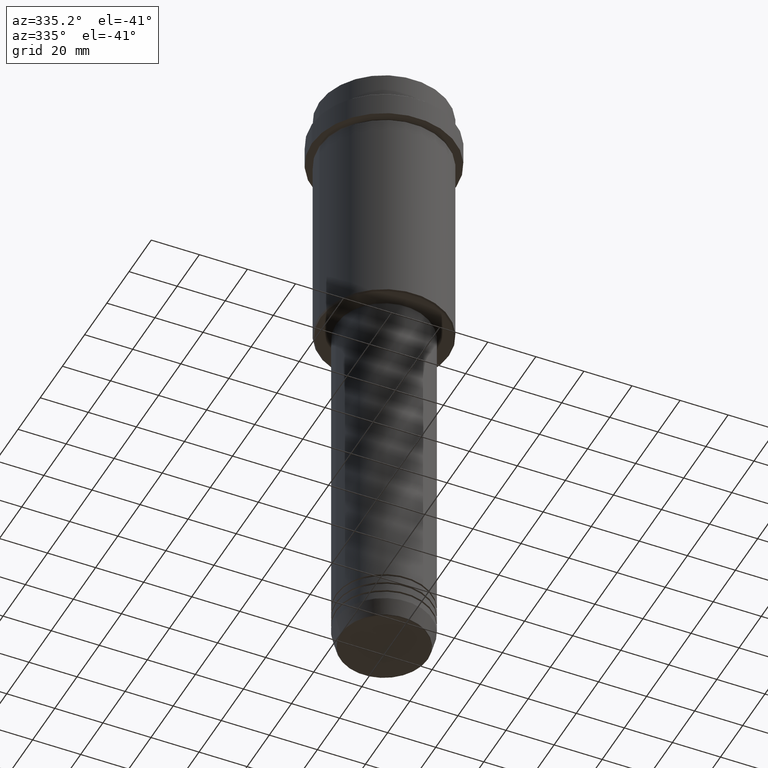
[diagram: clean part render]
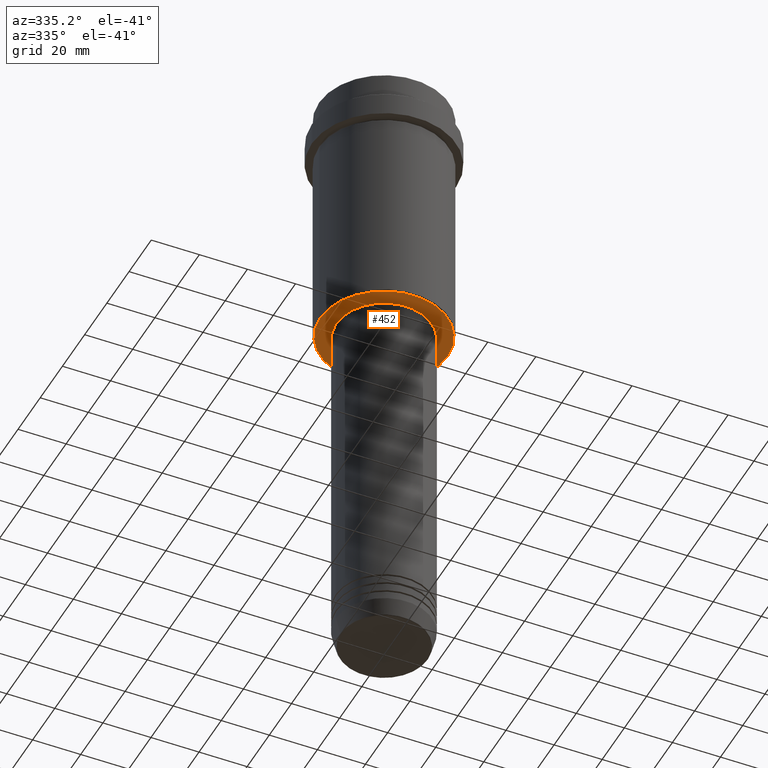
[diagram: same view with one face highlighted and labeled with its STEP entity id]
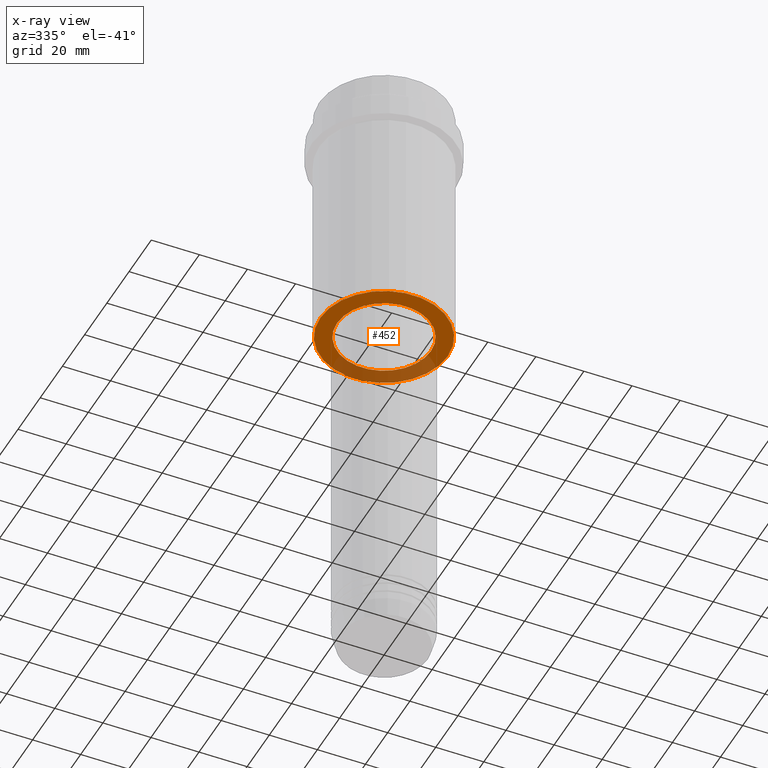
[diagram: x-ray of the same camera — body ghosted, the highlighted face saturated]
A machine part, auxiliary view. The second image highlights one B-rep face of the part: STEP entity #452.
The next image is the same camera in x-ray: the body ghosted, the highlighted face saturated — about 29% of this face is hidden behind the body in this view.
In plain terms, the highlighted planar face has unit normal (0, 0, -1).
Its self-contained STEP definition (entity closure, byte-faithful):
#9 = AXIS2_PLACEMENT_3D ( 'NONE', #335, #206, #1075 ) ;
#51 = VERTEX_POINT ( 'NONE', #1377 ) ;
#107 = DIRECTION ( 'NONE',  ( 0.000000000000000000, 0.000000000000000000, -1.000000000000000000 ) ) ;
#137 = ORIENTED_EDGE ( 'NONE', *, *, #1291, .T. ) ;
#203 = CARTESIAN_POINT ( 'NONE',  ( 26.49999999999996803, 0.000000000000000000, -108.0000000000000142 ) ) ;
#206 = DIRECTION ( 'NONE',  ( 0.000000000000000000, 0.000000000000000000, -1.000000000000000000 ) ) ;
#233 = CARTESIAN_POINT ( 'NONE',  ( 0.000000000000000000, 0.000000000000000000, -108.0000000000000142 ) ) ;
#295 = CARTESIAN_POINT ( 'NONE',  ( 19.50000000000000000, 0.000000000000000000, -108.0000000000000142 ) ) ;
#335 = CARTESIAN_POINT ( 'NONE',  ( 0.000000000000000000, 27.00000000000000000, -108.0000000000000142 ) ) ;
#405 = CIRCLE ( 'NONE', #1203, 19.50000000000000000 ) ;
#423 = DIRECTION ( 'NONE',  ( 1.000000000000000000, 0.000000000000000000, 0.000000000000000000 ) ) ;
#432 = EDGE_LOOP ( 'NONE', ( #1191, #821 ) ) ;
#434 = EDGE_CURVE ( 'NONE', #995, #51, #405, .T. ) ;
#437 = DIRECTION ( 'NONE',  ( -1.000000000000000000, 0.000000000000000000, 0.000000000000000000 ) ) ;
#447 = EDGE_CURVE ( 'NONE', #51, #995, #570, .T. ) ;
#452 = ADVANCED_FACE ( 'NONE', ( #1301, #1196 ), #1183, .T. ) ;
#455 = CIRCLE ( 'NONE', #1179, 26.49999999999996803 ) ;
#467 = ORIENTED_EDGE ( 'NONE', *, *, #1324, .T. ) ;
#555 = DIRECTION ( 'NONE',  ( -0.000000000000000000, -0.000000000000000000, 1.000000000000000000 ) ) ;
#570 = CIRCLE ( 'NONE', #1315, 19.50000000000000000 ) ;
#648 = CARTESIAN_POINT ( 'NONE',  ( 0.000000000000000000, 0.000000000000000000, -108.0000000000000142 ) ) ;
#657 = AXIS2_PLACEMENT_3D ( 'NONE', #986, #107, #437 ) ;
#668 = DIRECTION ( 'NONE',  ( -1.000000000000000000, 0.000000000000000000, 0.000000000000000000 ) ) ;
#761 = DIRECTION ( 'NONE',  ( -0.000000000000000000, -0.000000000000000000, 1.000000000000000000 ) ) ;
#821 = ORIENTED_EDGE ( 'NONE', *, *, #447, .T. ) ;
#867 = DIRECTION ( 'NONE',  ( 1.000000000000000000, 0.000000000000000000, 0.000000000000000000 ) ) ;
#893 = VERTEX_POINT ( 'NONE', #1227 ) ;
#894 = DIRECTION ( 'NONE',  ( 0.000000000000000000, 0.000000000000000000, -1.000000000000000000 ) ) ;
#986 = CARTESIAN_POINT ( 'NONE',  ( 0.000000000000000000, 0.000000000000000000, -108.0000000000000142 ) ) ;
#995 = VERTEX_POINT ( 'NONE', #295 ) ;
#1033 = EDGE_LOOP ( 'NONE', ( #137, #467 ) ) ;
#1075 = DIRECTION ( 'NONE',  ( -1.000000000000000000, 0.000000000000000000, -0.000000000000000000 ) ) ;
#1170 = VERTEX_POINT ( 'NONE', #203 ) ;
#1179 = AXIS2_PLACEMENT_3D ( 'NONE', #233, #894, #668 ) ;
#1183 = PLANE ( 'NONE',  #9 ) ;
#1191 = ORIENTED_EDGE ( 'NONE', *, *, #434, .T. ) ;
#1196 = FACE_BOUND ( 'NONE', #432, .T. ) ;
#1203 = AXIS2_PLACEMENT_3D ( 'NONE', #648, #555, #423 ) ;
#1227 = CARTESIAN_POINT ( 'NONE',  ( -26.49999999999996803, 3.275930187719167580E-15, -108.0000000000000142 ) ) ;
#1266 = CIRCLE ( 'NONE', #657, 26.49999999999996803 ) ;
#1291 = EDGE_CURVE ( 'NONE', #1170, #893, #1266, .T. ) ;
#1301 = FACE_OUTER_BOUND ( 'NONE', #1033, .T. ) ;
#1308 = CARTESIAN_POINT ( 'NONE',  ( 0.000000000000000000, 0.000000000000000000, -108.0000000000000142 ) ) ;
#1315 = AXIS2_PLACEMENT_3D ( 'NONE', #1308, #761, #867 ) ;
#1324 = EDGE_CURVE ( 'NONE', #893, #1170, #455, .T. ) ;
#1377 = CARTESIAN_POINT ( 'NONE',  ( -19.50000000000000000, 2.388061258337338939E-15, -108.0000000000000142 ) ) ;